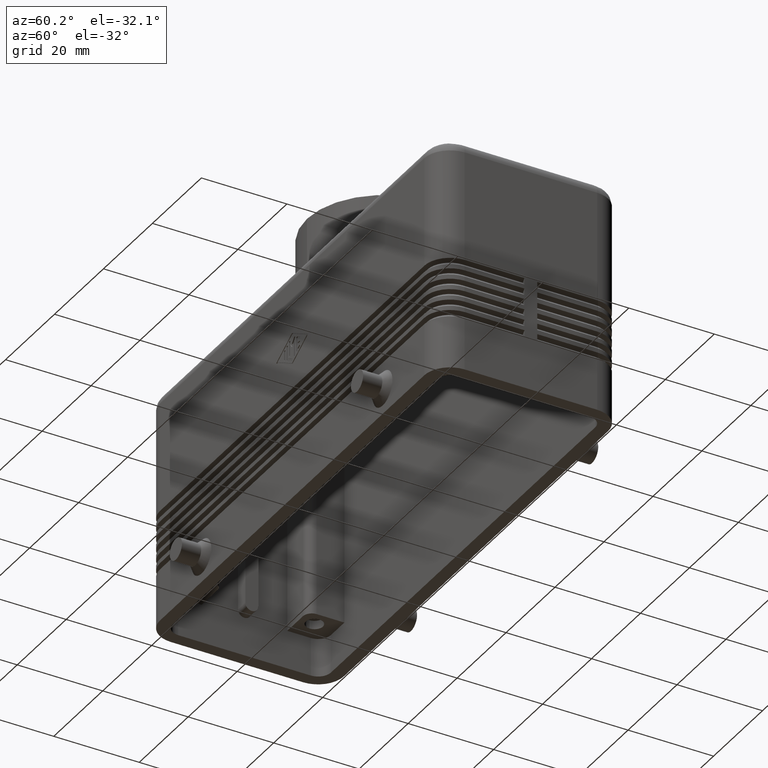
[diagram: clean part render]
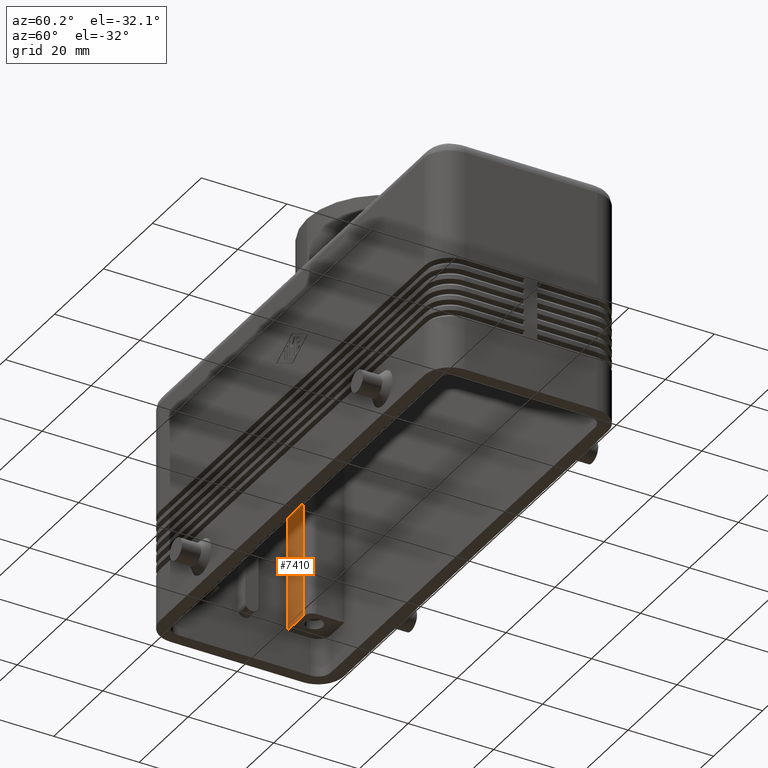
[diagram: same view with one face highlighted and labeled with its STEP entity id]
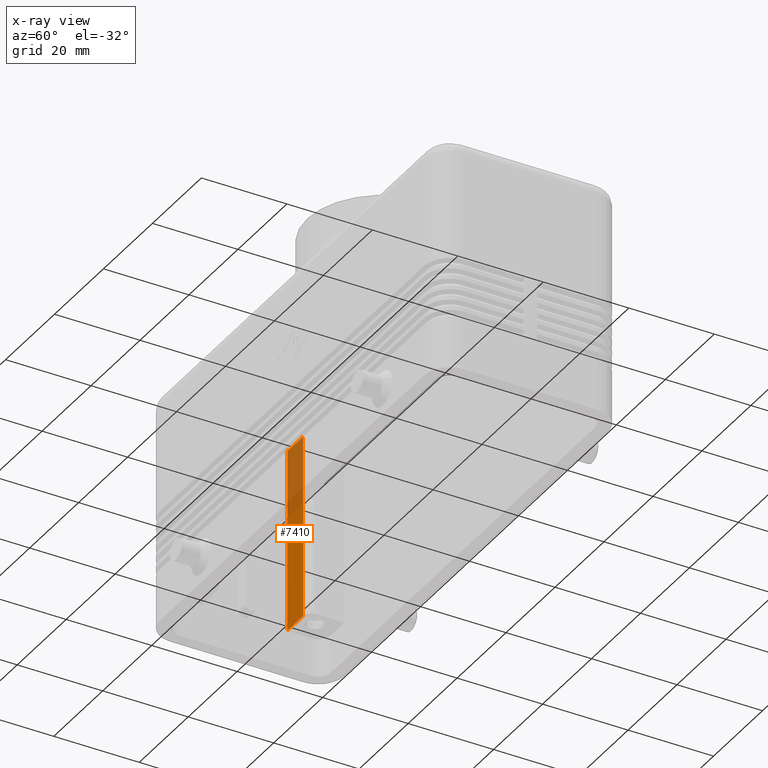
[diagram: x-ray of the same camera — body ghosted, the highlighted face saturated]
A machine part, auxiliary view. The second image highlights one B-rep face of the part: STEP entity #7410.
The next image is the same camera in x-ray: the body ghosted, the highlighted face saturated — about 37% of this face is hidden behind the body in this view.
In plain terms, the highlighted planar face has unit normal (0, 1, 0).
Its self-contained STEP definition (entity closure, byte-faithful):
#3106=CARTESIAN_POINT('',(-50.500000000000007,10.0,52.000000000000028));
#3107=VERTEX_POINT('',#3106);
#3115=CARTESIAN_POINT('',(-50.500000000000007,10.0,9.0));
#3116=VERTEX_POINT('',#3115);
#3117=CARTESIAN_POINT('',(-50.500000000000007,10.0,52.000000000000028));
#3118=DIRECTION('',(0.0,0.0,-1.0));
#3119=VECTOR('',#3118,43.000000000000028);
#3120=LINE('',#3117,#3119);
#3121=EDGE_CURVE('',#3107,#3116,#3120,.T.);
#5274=CARTESIAN_POINT('',(-56.999999999999972,10.0,52.000000000000028));
#5275=VERTEX_POINT('',#5274);
#5282=CARTESIAN_POINT('',(-50.500000000000007,10.0,52.000000000000028));
#5283=DIRECTION('',(-1.0,0.0,0.0));
#5284=VECTOR('',#5283,6.499999999999965);
#5285=LINE('',#5282,#5284);
#5286=EDGE_CURVE('',#3107,#5275,#5285,.T.);
#7347=CARTESIAN_POINT('',(-57.0,10.0,9.0));
#7348=VERTEX_POINT('',#7347);
#7349=CARTESIAN_POINT('',(-50.500000000000007,10.0,9.0));
#7350=DIRECTION('',(-1.0,0.0,0.0));
#7351=VECTOR('',#7350,6.499999999999993);
#7352=LINE('',#7349,#7351);
#7353=EDGE_CURVE('',#3116,#7348,#7352,.T.);
#7394=CARTESIAN_POINT('',(7.210978E-015,10.0,26.000000000000011));
#7395=DIRECTION('',(0.0,1.0,0.0));
#7396=DIRECTION('',(0.0,0.0,1.0));
#7397=AXIS2_PLACEMENT_3D('',#7394,#7395,#7396);
#7398=PLANE('',#7397);
#7399=ORIENTED_EDGE('',*,*,#3121,.F.);
#7400=ORIENTED_EDGE('',*,*,#5286,.T.);
#7401=CARTESIAN_POINT('',(-56.999999999999972,10.0,52.000000000000028));
#7402=DIRECTION('',(0.0,0.0,-1.0));
#7403=VECTOR('',#7402,43.000000000000028);
#7404=LINE('',#7401,#7403);
#7405=EDGE_CURVE('',#5275,#7348,#7404,.T.);
#7406=ORIENTED_EDGE('',*,*,#7405,.T.);
#7407=ORIENTED_EDGE('',*,*,#7353,.F.);
#7408=EDGE_LOOP('',(#7399,#7400,#7406,#7407));
#7409=FACE_OUTER_BOUND('',#7408,.T.);
#7410=ADVANCED_FACE('',(#7409),#7398,.F.);